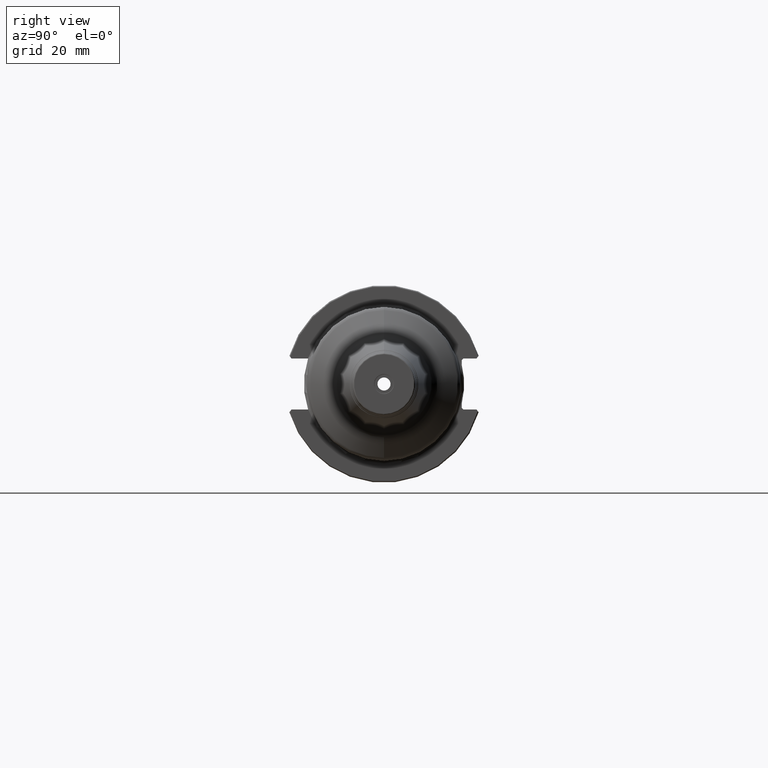
[diagram: clean part render]
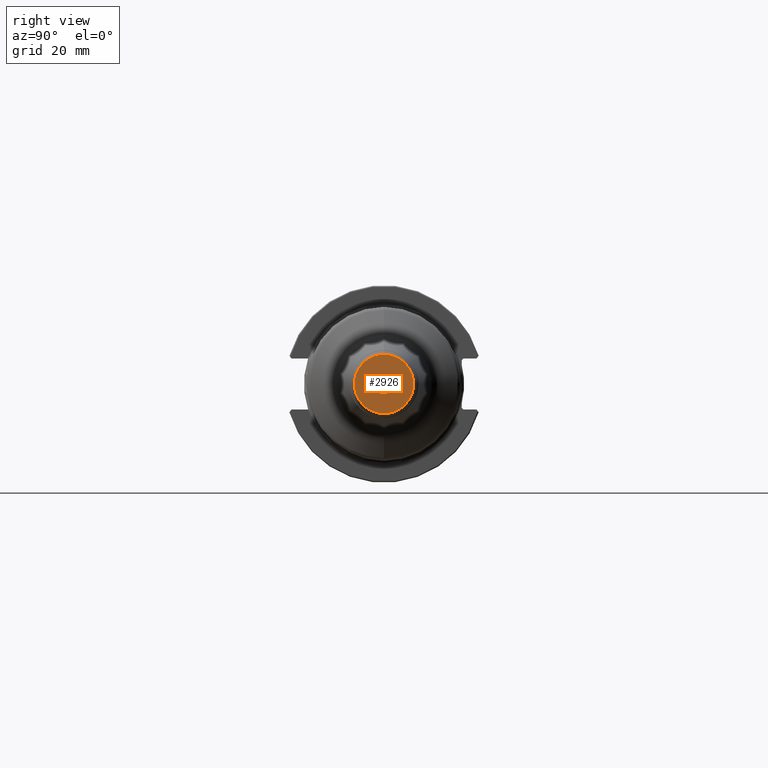
[diagram: same view with one face highlighted and labeled with its STEP entity id]
A machine part, right view. The second image highlights one B-rep face of the part: STEP entity #2926.
In plain terms, the highlighted planar face has unit normal (1, 0, 0).
Its self-contained STEP definition (entity closure, byte-faithful):
#648=CARTESIAN_POINT('',(1.50025E2,0.E0,0.E0));
#649=DIRECTION('',(1.E0,0.E0,0.E0));
#650=DIRECTION('',(0.E0,0.E0,-1.E0));
#651=AXIS2_PLACEMENT_3D('',#648,#649,#650);
#663=CARTESIAN_POINT('',(1.50025E2,0.E0,0.E0));
#664=DIRECTION('',(-1.E0,0.E0,0.E0));
#665=DIRECTION('',(0.E0,0.E0,-1.E0));
#666=AXIS2_PLACEMENT_3D('',#663,#664,#665);
#668=CARTESIAN_POINT('',(1.50025E2,0.E0,0.E0));
#669=DIRECTION('',(1.E0,0.E0,0.E0));
#670=DIRECTION('',(0.E0,0.E0,-1.E0));
#671=AXIS2_PLACEMENT_3D('',#668,#669,#670);
#673=CARTESIAN_POINT('',(1.50025E2,0.E0,0.E0));
#674=DIRECTION('',(-1.E0,0.E0,0.E0));
#675=DIRECTION('',(0.E0,0.E0,-1.E0));
#676=AXIS2_PLACEMENT_3D('',#673,#674,#675);
#1771=CARTESIAN_POINT('',(1.50025E2,0.E0,-3.175E0));
#1773=VERTEX_POINT('',#1771);
#1774=CARTESIAN_POINT('',(1.50025E2,0.E0,-9.525517716643E0));
#1776=VERTEX_POINT('',#1774);
#1827=CARTESIAN_POINT('',(1.50025E2,0.E0,3.175E0));
#1829=VERTEX_POINT('',#1827);
#1830=CARTESIAN_POINT('',(1.50025E2,0.E0,9.525517716643E0));
#1832=VERTEX_POINT('',#1830);
#2911=CARTESIAN_POINT('',(1.50025E2,0.E0,0.E0));
#2912=DIRECTION('',(1.E0,0.E0,0.E0));
#2913=DIRECTION('',(0.E0,0.E0,1.E0));
#2914=AXIS2_PLACEMENT_3D('',#2911,#2912,#2913);
#2915=PLANE('',#2914);
#2916=ORIENTED_EDGE('',*,*,#2906,.T.);
#2917=ORIENTED_EDGE('',*,*,#2890,.F.);
#2918=EDGE_LOOP('',(#2916,#2917));
#2919=FACE_OUTER_BOUND('',#2918,.F.);
#2921=ORIENTED_EDGE('',*,*,#2920,.T.);
#2923=ORIENTED_EDGE('',*,*,#2922,.F.);
#2924=EDGE_LOOP('',(#2921,#2923));
#2925=FACE_BOUND('',#2924,.F.);
#2926=ADVANCED_FACE('',(#2919,#2925),#2915,.T.);
#652=CIRCLE('',#651,9.525517716643E0);
#667=CIRCLE('',#666,9.525517716643E0);
#672=CIRCLE('',#671,3.175E0);
#677=CIRCLE('',#676,3.175E0);
#2890=EDGE_CURVE('',#1776,#1832,#652,.T.);
#2906=EDGE_CURVE('',#1776,#1832,#667,.T.);
#2920=EDGE_CURVE('',#1773,#1829,#672,.T.);
#2922=EDGE_CURVE('',#1773,#1829,#677,.T.);